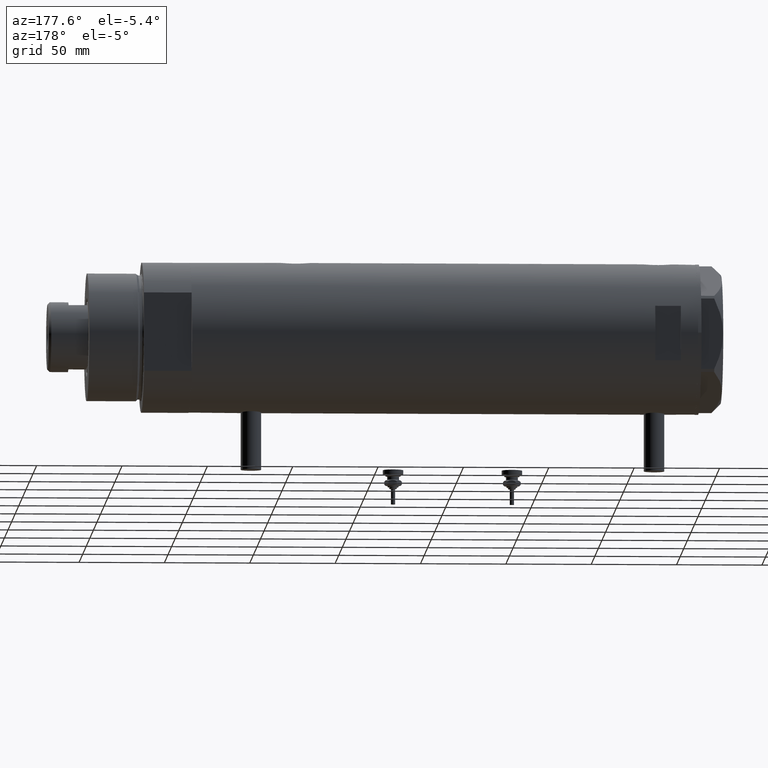
[diagram: clean part render]
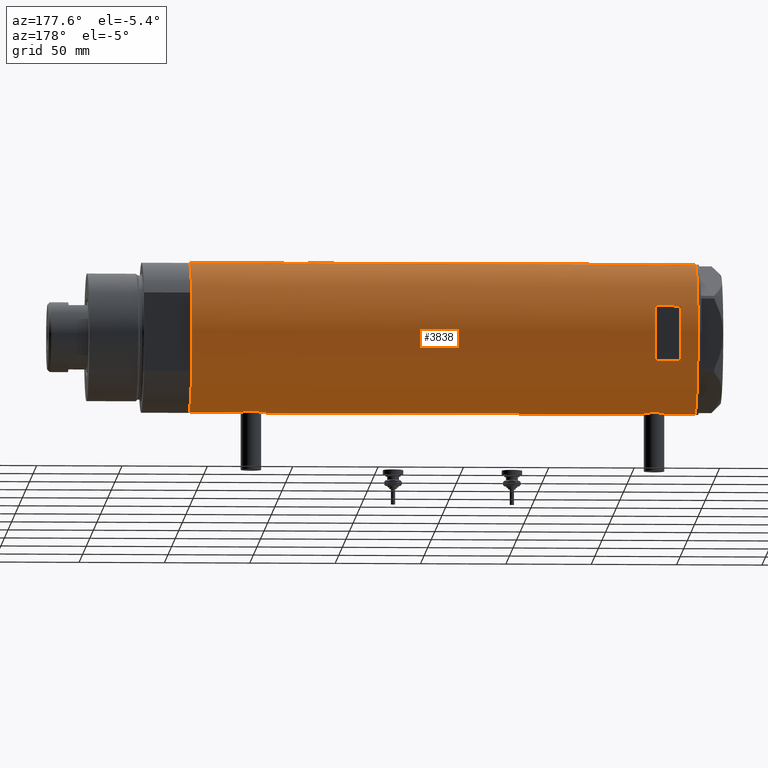
[diagram: same view with one face highlighted and labeled with its STEP entity id]
A machine part, auxiliary view. The second image highlights one B-rep face of the part: STEP entity #3838.
In plain terms, the highlighted cylindrical surface (partial cylindrical patch) has radius 44 mm, axis along (-1, -0, 0).
Its self-contained STEP definition (entity closure, byte-faithful):
#6 = CARTESIAN_POINT ( 'NONE',  ( -43.61859207403892214, 5.782454990768616021, 126.5978640851534180 ) ) ;
#14 = CARTESIAN_POINT ( 'NONE',  ( 0.000000000000000000, 0.000000000000000000, 148.1999999999999886 ) ) ;
#26 = CARTESIAN_POINT ( 'NONE',  ( 43.97062489912107708, 1.639461988184804486, 135.7701462666599070 ) ) ;
#90 = CARTESIAN_POINT ( 'NONE',  ( -44.00000000000000000, 5.388445916248353619E-15, -148.1999999999999886 ) ) ;
#112 = CARTESIAN_POINT ( 'NONE',  ( 43.61291203895921598, 5.829986172017927792, -94.23128710786834006 ) ) ;
#146 = CARTESIAN_POINT ( 'NONE',  ( 43.13962074468734897, 8.660138848900672315, -81.08910258836064600 ) ) ;
#180 = EDGE_CURVE ( 'NONE', #696, #1987, #1617, .T. ) ;
#183 = DIRECTION ( 'NONE',  ( -0.000000000000000000, -0.000000000000000000, -1.000000000000000000 ) ) ;
#187 = ORIENTED_EDGE ( 'NONE', *, *, #1380, .T. ) ;
#241 = CARTESIAN_POINT ( 'NONE',  ( 43.04663170950394857, 9.110642017076081345, -90.23547502190392322 ) ) ;
#249 = FACE_BOUND ( 'NONE', #1991, .T. ) ;
#277 = CARTESIAN_POINT ( 'NONE',  ( 43.80640706382533978, 4.134078575915388853, -76.98867178437912173 ) ) ;
#297 = CARTESIAN_POINT ( 'NONE',  ( 0.000000000000000000, 0.000000000000000000, 138.1999999999999886 ) ) ;
#298 = ORIENTED_EDGE ( 'NONE', *, *, #430, .F. ) ;
#318 = CARTESIAN_POINT ( 'NONE',  ( -43.95446647384543581, 2.010857111636599637, -105.9787577363606346 ) ) ;
#339 = CARTESIAN_POINT ( 'NONE',  ( 43.77712723341632284, 4.432620652875495892, -77.13004990240027325 ) ) ;
#345 = EDGE_CURVE ( 'NONE', #4763, #3845, #4575, .T. ) ;
#383 = EDGE_CURVE ( 'NONE', #2950, #775, #1349, .T. ) ;
#386 = CARTESIAN_POINT ( 'NONE',  ( -43.74805001749254529, 4.711035428619386956, -116.0277606412579985 ) ) ;
#398 = CARTESIAN_POINT ( 'NONE',  ( -43.97754480947187261, 1.419697478855583839, 130.2900327605207451 ) ) ;
#402 = EDGE_LOOP ( 'NONE', ( #3622, #4097, #1155, #5455, #2751, #187, #1235, #5748, #3074, #298, #2373, #955 ) ) ;
#412 = CARTESIAN_POINT ( 'NONE',  ( -43.55386785759471024, 6.249847571481740971, -111.4894505238204374 ) ) ;
#427 = CARTESIAN_POINT ( 'NONE',  ( -44.00000000000000000, 3.205170455528113082E-15, 130.4500000000000171 ) ) ;
#430 = EDGE_CURVE ( 'NONE', #3977, #696, #1002, .T. ) ;
#444 = CARTESIAN_POINT ( 'NONE',  ( -43.61859254253774054, 5.782454868881351295, -109.5021359910553542 ) ) ;
#447 = CARTESIAN_POINT ( 'NONE',  ( 42.92624534982631701, 9.661626915142806027, 123.2999199585529482 ) ) ;
#458 = CARTESIAN_POINT ( 'NONE',  ( -43.91413175532566981, 2.773555030353461515, 129.8158423836674729 ) ) ;
#479 = CARTESIAN_POINT ( 'NONE',  ( 42.96547725528407824, 9.488625330801086832, 129.1245034721107743 ) ) ;
#485 = CARTESIAN_POINT ( 'NONE',  ( -43.59867737633044982, 5.931302618788632408, 122.1875050497011301 ) ) ;
#502 = CARTESIAN_POINT ( 'NONE',  ( 42.84850876528984287, 10.00026482975808406, 126.5505830547042621 ) ) ;
#508 = CARTESIAN_POINT ( 'NONE',  ( -43.88883895882798925, 3.130924084324100409, 118.7868754425185216 ) ) ;
#530 = CARTESIAN_POINT ( 'NONE',  ( 43.99635668041006653, 0.6544833911834624374, 135.8840070847753623 ) ) ;
#609 = CARTESIAN_POINT ( 'NONE',  ( 43.92466059386730137, 2.593004216484783964, -95.76356669671355348 ) ) ;
#615 = DIRECTION ( 'NONE',  ( 1.000000000000000000, 0.000000000000000000, 0.000000000000000000 ) ) ;
#646 = VERTEX_POINT ( 'NONE', #5984 ) ;
#665 = CARTESIAN_POINT ( 'NONE',  ( 43.13897484505559987, 8.663345277311670145, -91.10529600060513644 ) ) ;
#687 = CARTESIAN_POINT ( 'NONE',  ( 43.94229162222109863, 2.275476993733910991, -95.84314464222305219 ) ) ;
#696 = VERTEX_POINT ( 'NONE', #3224 ) ;
#760 = CARTESIAN_POINT ( 'NONE',  ( -43.88968326835893663, 3.132363423941621150, -106.4762076764352088 ) ) ;
#775 = VERTEX_POINT ( 'NONE', #4089 ) ;
#841 = DIRECTION ( 'NONE',  ( 0.000000000000000000, 0.000000000000000000, 1.000000000000000000 ) ) ;
#849 = CARTESIAN_POINT ( 'NONE',  ( -43.71938389712227746, 4.966728892888062852, -108.0838554765912960 ) ) ;
#853 = CARTESIAN_POINT ( 'NONE',  ( 43.46520118248736253, 6.843279251446918288, 118.6010167278784024 ) ) ;
#875 = CARTESIAN_POINT ( 'NONE',  ( 43.50265731352003939, 6.601850423195601003, 118.3818083270105177 ) ) ;
#903 = CARTESIAN_POINT ( 'NONE',  ( 42.86370458161098185, 9.935807968041567406, 124.5909544957013253 ) ) ;
#914 = CARTESIAN_POINT ( 'NONE',  ( -43.67863969133946966, 5.309394106110044476, 127.5037929650255109 ) ) ;
#918 = VECTOR ( 'NONE', #4437, 1000.000000000000000 ) ;
#932 = CARTESIAN_POINT ( 'NONE',  ( 42.99303682946561622, 9.360292926890506848, 122.3657577979279836 ) ) ;
#940 = CARTESIAN_POINT ( 'NONE',  ( -43.87596296923809547, 3.305851531861729420, 118.8919641412373522 ) ) ;
#955 = ORIENTED_EDGE ( 'NONE', *, *, #5128, .F. ) ;
#958 = CARTESIAN_POINT ( 'NONE',  ( 43.04663170950396278, 9.110642017076083121, 121.7645249780961052 ) ) ;
#1002 = LINE ( 'NONE', #1087, #1160 ) ;
#1017 = EDGE_CURVE ( 'NONE', #2709, #4830, #2514, .T. ) ;
#1061 = VERTEX_POINT ( 'NONE', #5917 ) ;
#1087 = CARTESIAN_POINT ( 'NONE',  ( 44.00000000000000000, 0.000000000000000000, -148.1999999999999886 ) ) ;
#1089 = VECTOR ( 'NONE', #2594, 1000.000000000000000 ) ;
#1110 = CARTESIAN_POINT ( 'NONE',  ( 44.00000000000001421, 0.3269372501759423844, 135.9000000000000625 ) ) ;
#1130 = DIRECTION ( 'NONE',  ( 0.000000000000000000, 0.000000000000000000, 1.000000000000000000 ) ) ;
#1155 = ORIENTED_EDGE ( 'NONE', *, *, #2081, .F. ) ;
#1160 = VECTOR ( 'NONE', #2014, 1000.000000000000000 ) ;
#1163 = CARTESIAN_POINT ( 'NONE',  ( 42.90786968859020334, 9.742642423712169375, -88.37802296547127412 ) ) ;
#1188 = ORIENTED_EDGE ( 'NONE', *, *, #345, .F. ) ;
#1232 = CARTESIAN_POINT ( 'NONE',  ( 43.39051256276903246, 7.301963662770312169, -79.25975531787059936 ) ) ;
#1235 = ORIENTED_EDGE ( 'NONE', *, *, #383, .F. ) ;
#1239 = CARTESIAN_POINT ( 'NONE',  ( -43.99999999999997158, 0.4081702738789203533, -118.1499999999999631 ) ) ;
#1276 = CARTESIAN_POINT ( 'NONE',  ( -43.64122538274736485, 5.608286354294323317, 126.9661138696334177 ) ) ;
#1302 = CARTESIAN_POINT ( 'NONE',  ( 43.88561577393363677, 3.228056721358719017, 135.3872166572783158 ) ) ;
#1317 = CARTESIAN_POINT ( 'NONE',  ( 43.68141895191830315, 5.292250119194731539, -77.60895047714808470 ) ) ;
#1321 = EDGE_CURVE ( 'NONE', #1488, #3977, #3317, .T. ) ;
#1336 = CARTESIAN_POINT ( 'NONE',  ( -44.00000000000001421, 0.4135148353567998369, 130.4500000000000171 ) ) ;
#1348 = CARTESIAN_POINT ( 'NONE',  ( -43.91315028150560096, 2.769134003554746482, -117.5068261937540370 ) ) ;
#1349 = CIRCLE ( 'NONE', #4260, 44.00000000000000000 ) ;
#1352 = CARTESIAN_POINT ( 'NONE',  ( 42.86396777580259965, 9.934664719553397916, 127.2157619902652357 ) ) ;
#1364 = CARTESIAN_POINT ( 'NONE',  ( -15.96871942267132027, 40.99999999999999289, -148.1999999999999886 ) ) ;
#1376 = CARTESIAN_POINT ( 'NONE',  ( 43.17277162440354488, 8.493905080221260562, 120.6121296489150723 ) ) ;
#1379 = ORIENTED_EDGE ( 'NONE', *, *, #1017, .F. ) ;
#1380 = EDGE_CURVE ( 'NONE', #1061, #775, #3103, .T. ) ;
#1408 = CARTESIAN_POINT ( 'NONE',  ( 43.71454618729809738, 5.012329428678965471, 134.5593697405831222 ) ) ;
#1413 = LINE ( 'NONE', #90, #1555 ) ;
#1430 = CARTESIAN_POINT ( 'NONE',  ( 15.96871942267132027, 40.99999999999999289, 138.1999999999999886 ) ) ;
#1437 = CARTESIAN_POINT ( 'NONE',  ( 44.00000000000000000, -3.917205576288906830E-21, 135.9000000000000341 ) ) ;
#1456 = VECTOR ( 'NONE', #841, 1000.000000000000000 ) ;
#1488 = VERTEX_POINT ( 'NONE', #2898 ) ;
#1528 = CARTESIAN_POINT ( 'NONE',  ( 43.17306590853065984, 8.492365194390513849, -80.80987467306545113 ) ) ;
#1555 = VECTOR ( 'NONE', #5603, 1000.000000000000000 ) ;
#1562 = CIRCLE ( 'NONE', #5943, 44.00000000000000000 ) ;
#1586 = CARTESIAN_POINT ( 'NONE',  ( 44.00000000000000000, -2.552687571866728611E-15, -96.10000000000000853 ) ) ;
#1617 = B_SPLINE_CURVE_WITH_KNOTS ( 'NONE', 3,
 ( #5543, #4115, #2237, #4082, #4637, #3196, #5514, #5571, #5139, #3147, #5951, #875, #853, #4203, #3617, #1376, #2714, #5480, #958, #932, #4586, #447, #5077, #903, #2267, #502, #1352, #3647, #479, #5986, #1750, #2297, #1805, #2738, #2325, #4142, #2798, #2846, #1831, #3675, #1408, #4169, #3227, #1302, #4560, #26, #4670, #530, #1110, #1437 ),
 .UNSPECIFIED., .F., .F.,
 ( 4, 2, 2, 2, 2, 2, 2, 2, 2, 2, 2, 2, 2, 2, 2, 2, 2, 2, 2, 2, 2, 2, 2, 2, 4 ),
 ( 1.676565531868734773E-18, 0.001960456513248841175, 0.002940684769873264798, 0.003920913026497689288, 0.005881369539746519187, 0.006861597796370934137, 0.007841826052995349086, 0.009802282566244210210, 0.01078251082286863817, 0.01176273907949306613, 0.01274296733611749582, 0.01372319559274192378, 0.01568365210599073981, 0.01764410861923955062, 0.01960456513248837185, 0.02058479338911281889, 0.02156502164573726593, 0.02254524990236171644, 0.02352547815898616002, 0.02548593467223511655, 0.02646616292885961563, 0.02744639118548411472, 0.02940684769873311635, 0.03038707595535761891, 0.03136730421198213187 ),
 .UNSPECIFIED. ) ;
#1676 = CARTESIAN_POINT ( 'NONE',  ( 44.00000000000000000, 0.000000000000000000, 148.1999999999999886 ) ) ;
#1693 = CARTESIAN_POINT ( 'NONE',  ( -43.97068415157983878, 1.617901284326946909, -105.8595487169995266 ) ) ;
#1713 = CARTESIAN_POINT ( 'NONE',  ( 44.00000000000000000, -3.917104602093038540E-21, -76.10000000000000853 ) ) ;
#1718 = CARTESIAN_POINT ( 'NONE',  ( -43.59995593514495482, 5.920088975424566691, -109.8858209130821848 ) ) ;
#1729 = CARTESIAN_POINT ( 'NONE',  ( -43.59995593514495482, 5.920088975424567579, 126.2141790869178379 ) ) ;
#1740 = CARTESIAN_POINT ( 'NONE',  ( 43.88561577393361546, 3.228056721358708803, -76.61278334272179791 ) ) ;
#1750 = CARTESIAN_POINT ( 'NONE',  ( 43.07641822757289418, 8.969229373860580168, 130.3339623579017257 ) ) ;
#1757 = CARTESIAN_POINT ( 'NONE',  ( -43.71938389712227035, 4.966728892888069069, 128.0161445234087125 ) ) ;
#1777 = CARTESIAN_POINT ( 'NONE',  ( -43.94507179847653333, 2.206027755801677870, -106.0486847771820322 ) ) ;
#1788 = CARTESIAN_POINT ( 'NONE',  ( -43.55973179376101001, 6.209370339246233605, 123.3793823294013379 ) ) ;
#1795 = EDGE_CURVE ( 'NONE', #5156, #646, #1413, .T. ) ;
#1802 = CARTESIAN_POINT ( 'NONE',  ( -43.55973179376100290, 6.209370339246232717, -112.7206176705986849 ) ) ;
#1805 = CARTESIAN_POINT ( 'NONE',  ( 43.17306590853067405, 8.492365194390501415, 131.1901253269345773 ) ) ;
#1812 = CARTESIAN_POINT ( 'NONE',  ( -43.57657963456318839, 6.089610171536609329, 125.6217853958080894 ) ) ;
#1831 = CARTESIAN_POINT ( 'NONE',  ( 43.57805684119163914, 6.103282219787171670, 133.8481620164786534 ) ) ;
#1917 = DIRECTION ( 'NONE',  ( -0.000000000000000000, -0.000000000000000000, 1.000000000000000000 ) ) ;
#1945 = CARTESIAN_POINT ( 'NONE',  ( 42.96547725528408535, 9.488625330801085056, -82.87549652788929677 ) ) ;
#1987 = VERTEX_POINT ( 'NONE', #5356 ) ;
#1991 = EDGE_LOOP ( 'NONE', ( #3161, #1379, #2564, #1188 ) ) ;
#2014 = DIRECTION ( 'NONE',  ( 0.000000000000000000, 0.000000000000000000, 1.000000000000000000 ) ) ;
#2081 = EDGE_CURVE ( 'NONE', #2909, #646, #5911, .T. ) ;
#2117 = CARTESIAN_POINT ( 'NONE',  ( 44.00000000000000000, 0.000000000000000000, -148.1999999999999886 ) ) ;
#2128 = B_SPLINE_CURVE_WITH_KNOTS ( 'NONE', 3,
 ( #427, #1336, #4125, #398, #2276, #5522, #3157, #458, #3182, #5062, #2671, #5490, #1757, #914, #4178, #1276, #6, #1729, #3684, #1812, #5040, #2777, #5550, #1788, #4568, #485, #5580, #4542, #3237, #2749, #4620, #2302, #5117, #2336, #940, #508, #2213, #3594, #3564, #2249, #5004, #5463, #3119 ),
 .UNSPECIFIED., .F., .F.,
 ( 4, 2, 2, 2, 2, 2, 2, 2, 1, 2, 2, 2, 2, 2, 2, 2, 2, 2, 2, 2, 2, 4 ),
 ( 3.114226524098576417E-18, 0.001222818171749707637, 0.001834227257624559829, 0.002445636343499412238, 0.003668454515249116622, 0.004891272686998821874, 0.006114090858748525391, 0.006725499944623378884, 0.007336909030498230642, 0.007948318116373082401, 0.008559727202247935027, 0.009782545373997636809, 0.01100536354574729869, 0.01222818171749695884, 0.01283959080337180973, 0.01345099988924666062, 0.01467381806099635894, 0.01589663623274606072, 0.01650804531862090987, 0.01711945440449575903, 0.01834227257624546428, 0.01956509074799516260 ),
 .UNSPECIFIED. ) ;
#2147 = CARTESIAN_POINT ( 'NONE',  ( -43.59867737633045692, 5.931302618788633296, -113.9124949502988926 ) ) ;
#2167 = DIRECTION ( 'NONE',  ( 1.000000000000000000, 0.000000000000000000, 0.000000000000000000 ) ) ;
#2171 = CARTESIAN_POINT ( 'NONE',  ( 43.71454618729809027, 5.012329428678959253, -77.44063025941690626 ) ) ;
#2183 = CARTESIAN_POINT ( 'NONE',  ( -43.62981559643959883, 5.696090409300652802, -114.4805136541452271 ) ) ;
#2194 = LINE ( 'NONE', #3128, #1089 ) ;
#2213 = CARTESIAN_POINT ( 'NONE',  ( -43.91315028150558675, 2.769134003554747370, 118.5931738062459573 ) ) ;
#2234 = CARTESIAN_POINT ( 'NONE',  ( -43.55382423478827292, 6.250151562062086441, -112.3058952948734088 ) ) ;
#2237 = CARTESIAN_POINT ( 'NONE',  ( 43.98503110884230694, 1.314607393679875225, 115.9652901565444694 ) ) ;
#2249 = CARTESIAN_POINT ( 'NONE',  ( -43.97181775256599678, 1.624866278047412349, 118.1510708161490442 ) ) ;
#2264 = CARTESIAN_POINT ( 'NONE',  ( -43.99417607942194763, 0.8200150578638748522, -105.6906332748326207 ) ) ;
#2267 = CARTESIAN_POINT ( 'NONE',  ( 42.84863276153905787, 9.999733523508361088, 125.2413009524922245 ) ) ;
#2276 = CARTESIAN_POINT ( 'NONE',  ( -43.97068415157984589, 1.617901284326944689, 130.2404512830004251 ) ) ;
#2297 = CARTESIAN_POINT ( 'NONE',  ( 43.13962074468733476, 8.660138848900681197, 130.9108974116393540 ) ) ;
#2302 = CARTESIAN_POINT ( 'NONE',  ( -43.74805001749256661, 4.711035428619386956, 120.0722393587420669 ) ) ;
#2325 = CARTESIAN_POINT ( 'NONE',  ( 43.27871541412905287, 7.937063204555979468, 131.9917499724603545 ) ) ;
#2336 = CARTESIAN_POINT ( 'NONE',  ( -43.83576802966639008, 3.813209221108460500, 119.2313450964529125 ) ) ;
#2359 = CARTESIAN_POINT ( 'NONE',  ( 0.000000000000000000, 0.000000000000000000, 123.1999999999999744 ) ) ;
#2373 = ORIENTED_EDGE ( 'NONE', *, *, #1321, .F. ) ;
#2406 = CARTESIAN_POINT ( 'NONE',  ( 42.84850876528984287, 10.00026482975807873, -85.44941694529576637 ) ) ;
#2437 = CARTESIAN_POINT ( 'NONE',  ( 43.04652664061920575, 9.111152824375425396, -81.96541990785412679 ) ) ;
#2472 = CARTESIAN_POINT ( 'NONE',  ( 43.35257020184193522, 7.523219862841656003, -79.50397445915866967 ) ) ;
#2497 = CARTESIAN_POINT ( 'NONE',  ( 43.46520118248735542, 6.843279251446915623, -93.39898327212165441 ) ) ;
#2508 = DIRECTION ( 'NONE',  ( 0.000000000000000000, 0.000000000000000000, 1.000000000000000000 ) ) ;
#2514 = LINE ( 'NONE', #5706, #5641 ) ;
#2531 = CARTESIAN_POINT ( 'NONE',  ( 43.88297407487990398, 3.222431612395379119, -95.57228202029342867 ) ) ;
#2564 = ORIENTED_EDGE ( 'NONE', *, *, #6000, .F. ) ;
#2586 = CARTESIAN_POINT ( 'NONE',  ( -44.00000000000000000, 5.388445916248353619E-15, -148.1999999999999886 ) ) ;
#2594 = DIRECTION ( 'NONE',  ( 0.000000000000000000, 0.000000000000000000, 1.000000000000000000 ) ) ;
#2671 = CARTESIAN_POINT ( 'NONE',  ( -43.80646232387288563, 4.132500855894035929, 128.9064558540335668 ) ) ;
#2679 = CARTESIAN_POINT ( 'NONE',  ( 43.57805684119164624, 6.103282219787162788, -78.15183798352141764 ) ) ;
#2685 = CARTESIAN_POINT ( 'NONE',  ( -43.66555354895124452, 5.415612800338318600, -108.7734364282244712 ) ) ;
#2709 = VERTEX_POINT ( 'NONE', #1430 ) ;
#2710 = CARTESIAN_POINT ( 'NONE',  ( -43.97754480947185129, 1.419697478855583617, -105.8099672394792066 ) ) ;
#2714 = CARTESIAN_POINT ( 'NONE',  ( 43.13897484505559277, 8.663345277311664816, 120.8947039993948920 ) ) ;
#2738 = CARTESIAN_POINT ( 'NONE',  ( 43.24261242176996234, 8.130827601038818742, 131.7305518685417383 ) ) ;
#2749 = CARTESIAN_POINT ( 'NONE',  ( -43.67867890111968165, 5.309046579850784653, 120.8957722092397660 ) ) ;
#2751 = ORIENTED_EDGE ( 'NONE', *, *, #4621, .F. ) ;
#2777 = CARTESIAN_POINT ( 'NONE',  ( -43.55386785759471735, 6.249847571481741859, 124.6105494761795569 ) ) ;
#2798 = CARTESIAN_POINT ( 'NONE',  ( 43.39051256276903956, 7.301963662770305064, 132.7402446821294575 ) ) ;
#2821 = VECTOR ( 'NONE', #1130, 1000.000000000000000 ) ;
#2846 = CARTESIAN_POINT ( 'NONE',  ( 43.50382207688847558, 6.605942769308297713, 133.4360468883822932 ) ) ;
#2898 = CARTESIAN_POINT ( 'NONE',  ( 44.00000000000000000, -2.552687571866728611E-15, -96.10000000000000853 ) ) ;
#2909 = VERTEX_POINT ( 'NONE', #4067 ) ;
#2910 = CARTESIAN_POINT ( 'NONE',  ( 43.27822890220284791, 7.945655169171514487, -92.20725383289293120 ) ) ;
#2915 = CYLINDRICAL_SURFACE ( 'NONE', #3023, 44.00000000000000000 ) ;
#2922 = EDGE_CURVE ( 'NONE', #1987, #2950, #2194, .T. ) ;
#2933 = EDGE_CURVE ( 'NONE', #4991, #5156, #1562, .T. ) ;
#2942 = CARTESIAN_POINT ( 'NONE',  ( 43.77939001959703802, 4.442287752090381403, -95.08306177559161654 ) ) ;
#2950 = VERTEX_POINT ( 'NONE', #1676 ) ;
#3023 = AXIS2_PLACEMENT_3D ( 'NONE', #4764, #2508, #615 ) ;
#3074 = ORIENTED_EDGE ( 'NONE', *, *, #180, .F. ) ;
#3087 = EDGE_CURVE ( 'NONE', #4830, #4763, #5846, .T. ) ;
#3103 = LINE ( 'NONE', #4987, #1456 ) ;
#3108 = CARTESIAN_POINT ( 'NONE',  ( -43.91413175532567692, 2.773555030353453965, -106.2841576163325925 ) ) ;
#3119 = CARTESIAN_POINT ( 'NONE',  ( -44.00000000000000000, 5.388445781982983516E-15, 117.9500000000000028 ) ) ;
#3128 = CARTESIAN_POINT ( 'NONE',  ( 44.00000000000000000, 0.000000000000000000, -148.1999999999999886 ) ) ;
#3147 = CARTESIAN_POINT ( 'NONE',  ( 43.61291203895921598, 5.829986172017925128, 117.7687128921317452 ) ) ;
#3157 = CARTESIAN_POINT ( 'NONE',  ( -43.94507179847653333, 2.206027755801685863, 130.0513152228180047 ) ) ;
#3161 = ORIENTED_EDGE ( 'NONE', *, *, #3087, .F. ) ;
#3172 = CARTESIAN_POINT ( 'NONE',  ( -43.58221825186232223, 6.049526113783018744, -113.5226297081795650 ) ) ;
#3182 = CARTESIAN_POINT ( 'NONE',  ( -43.88968326835894374, 3.132363423941633140, 129.6237923235648282 ) ) ;
#3193 = CARTESIAN_POINT ( 'NONE',  ( -43.80646232387288563, 4.132500855894024383, -107.1935441459664275 ) ) ;
#3196 = CARTESIAN_POINT ( 'NONE',  ( 43.88297407487989688, 3.222431612395376455, 116.4277179797065997 ) ) ;
#3212 = DIRECTION ( 'NONE',  ( 0.000000000000000000, 0.000000000000000000, 1.000000000000000000 ) ) ;
#3224 = CARTESIAN_POINT ( 'NONE',  ( 44.00000000000000000, -1.726036355082439716E-15, 115.9000000000000199 ) ) ;
#3227 = CARTESIAN_POINT ( 'NONE',  ( 43.80640706382533267, 4.134078575915394183, 135.0113282156208641 ) ) ;
#3237 = CARTESIAN_POINT ( 'NONE',  ( -43.66575107734167460, 5.414026674167574882, 121.0706491196229848 ) ) ;
#3299 = EDGE_CURVE ( 'NONE', #2909, #5459, #5751, .T. ) ;
#3317 = B_SPLINE_CURVE_WITH_KNOTS ( 'NONE', 3,
 ( #1586, #4855, #3874, #687, #609, #2531, #3785, #2942, #5219, #112, #4385, #3841, #2497, #5721, #2910, #4822, #665, #4758, #241, #3462, #5757, #5347, #1163, #3815, #5673, #2406, #3347, #4257, #1945, #2437, #5696, #146, #1528, #3370, #4788, #2472, #1232, #4893, #2679, #1317, #2171, #339, #277, #1740, #3576, #5473, #5411, #3939, #4424, #1713 ),
 .UNSPECIFIED., .F., .F.,
 ( 4, 2, 2, 2, 2, 2, 2, 2, 2, 2, 2, 2, 2, 2, 2, 2, 2, 2, 2, 2, 2, 2, 2, 2, 4 ),
 ( 2.479523669370822448E-18, 0.001960456513248891482, 0.002940684769873340258, 0.003920913026497789035, 0.005881369539746669241, 0.006861597796371108476, 0.007841826052995546845, 0.009802282566244456541, 0.01078251082286890879, 0.01176273907949335930, 0.01274296733611781154, 0.01372319559274226206, 0.01568365210599112838, 0.01764410861923999124, 0.01960456513248885757, 0.02058479338911329073, 0.02156502164573771696, 0.02254524990236214665, 0.02352547815898657982, 0.02548593467223546696, 0.02646616292885991054, 0.02744639118548435758, 0.02940684769873324472, 0.03038707595535769176, 0.03136730421198213881 ),
 .UNSPECIFIED. ) ;
#3347 = CARTESIAN_POINT ( 'NONE',  ( 42.86396777580259254, 9.934664719553399692, -84.78423800973480695 ) ) ;
#3370 = CARTESIAN_POINT ( 'NONE',  ( 43.24261242176995523, 8.130827601038827623, -80.26944813145831858 ) ) ;
#3410 = FACE_OUTER_BOUND ( 'NONE', #402, .T. ) ;
#3462 = CARTESIAN_POINT ( 'NONE',  ( 42.99303682946561622, 9.360292926890510401, -89.63424220207205906 ) ) ;
#3512 = DIRECTION ( 'NONE',  ( -0.000000000000000000, -0.000000000000000000, -1.000000000000000000 ) ) ;
#3531 = CARTESIAN_POINT ( 'NONE',  ( -43.92459115390705193, 2.581892149020998950, -117.5954582707334595 ) ) ;
#3555 = CARTESIAN_POINT ( 'NONE',  ( -43.95549163632549750, 2.014511215452027937, -117.8305895570497768 ) ) ;
#3564 = CARTESIAN_POINT ( 'NONE',  ( -43.95549163632550460, 2.014511215452026160, 118.2694104429502460 ) ) ;
#3576 = CARTESIAN_POINT ( 'NONE',  ( 43.92756755766650656, 2.604528169608118393, -76.42286588097658750 ) ) ;
#3589 = AXIS2_PLACEMENT_3D ( 'NONE', #2359, #1917, #5249 ) ;
#3594 = CARTESIAN_POINT ( 'NONE',  ( -43.92459115390705904, 2.581892149020998506, 118.5045417292665491 ) ) ;
#3615 = CARTESIAN_POINT ( 'NONE',  ( -43.80687348212602217, 4.128385987736833407, -116.6104874331096255 ) ) ;
#3617 = CARTESIAN_POINT ( 'NONE',  ( 43.27822890220284791, 7.945655169171514487, 119.7927461671070830 ) ) ;
#3622 = ORIENTED_EDGE ( 'NONE', *, *, #2933, .T. ) ;
#3644 = CARTESIAN_POINT ( 'NONE',  ( -43.64133398152736021, 5.607447751852152606, -114.6678604501243512 ) ) ;
#3647 = CARTESIAN_POINT ( 'NONE',  ( 42.92259096922159500, 9.678247830257124207, 128.5000599302879323 ) ) ;
#3675 = CARTESIAN_POINT ( 'NONE',  ( 43.68141895191831736, 5.292250119194742197, 134.3910495228520006 ) ) ;
#3684 = CARTESIAN_POINT ( 'NONE',  ( -43.58362292239463187, 6.039157555656599285, 125.8226357844804681 ) ) ;
#3785 = CARTESIAN_POINT ( 'NONE',  ( 43.85884410404901956, 3.534688330930385369, -95.46019808750335756 ) ) ;
#3815 = CARTESIAN_POINT ( 'NONE',  ( 42.86370458161097474, 9.935807968041563853, -87.40904550429864628 ) ) ;
#3838 = ADVANCED_FACE ( 'NONE', ( #249, #3410 ), #2915, .T. ) ;
#3841 = CARTESIAN_POINT ( 'NONE',  ( 43.50265731352003939, 6.601850423195591233, -93.61819167298956756 ) ) ;
#3845 = VERTEX_POINT ( 'NONE', #5288 ) ;
#3874 = CARTESIAN_POINT ( 'NONE',  ( 43.98503110884232115, 1.314607393679875669, -96.03470984345551642 ) ) ;
#3916 = CARTESIAN_POINT ( 'NONE',  ( -15.96871942267132027, 40.99999999999999289, 123.1999999999999886 ) ) ;
#3935 = CARTESIAN_POINT ( 'NONE',  ( 0.000000000000000000, 0.000000000000000000, -148.1999999999999886 ) ) ;
#3939 = CARTESIAN_POINT ( 'NONE',  ( 43.99635668041006653, 0.6544833911834552209, -76.11599291522472299 ) ) ;
#3977 = VERTEX_POINT ( 'NONE', #4077 ) ;
#3982 = CARTESIAN_POINT ( 'NONE',  ( -43.88883895882799635, 3.130924084324101297, -117.3131245574814727 ) ) ;
#4013 = CARTESIAN_POINT ( 'NONE',  ( -43.97181775256600389, 1.624866278047415680, -117.9489291838509502 ) ) ;
#4067 = CARTESIAN_POINT ( 'NONE',  ( -44.00000000000000000, 4.742435893011557518E-16, -105.6499999999999915 ) ) ;
#4077 = CARTESIAN_POINT ( 'NONE',  ( 44.00000000000000000, -3.917104602093038540E-21, -76.10000000000000853 ) ) ;
#4079 = CARTESIAN_POINT ( 'NONE',  ( -43.64122538274737195, 5.608286354294323317, -109.1338861303666192 ) ) ;
#4082 = CARTESIAN_POINT ( 'NONE',  ( 43.94229162222109863, 2.275476993733910547, 116.1568553577769620 ) ) ;
#4089 = CARTESIAN_POINT ( 'NONE',  ( -44.00000000000000000, 5.388445916248353619E-15, 148.1999999999999886 ) ) ;
#4097 = ORIENTED_EDGE ( 'NONE', *, *, #1795, .T. ) ;
#4113 = CARTESIAN_POINT ( 'NONE',  ( -43.57657963456318839, 6.089610171536606664, -110.4782146041918622 ) ) ;
#4115 = CARTESIAN_POINT ( 'NONE',  ( 44.00000000000001421, 0.6630566900259826646, 115.9000000000000483 ) ) ;
#4125 = CARTESIAN_POINT ( 'NONE',  ( -43.99417607942194763, 0.8200150578638757404, 130.4093667251674162 ) ) ;
#4142 = CARTESIAN_POINT ( 'NONE',  ( 43.35257020184193522, 7.523219862841646233, 132.4960255408413730 ) ) ;
#4169 = CARTESIAN_POINT ( 'NONE',  ( 43.77712723341632994, 4.432620652875505662, 134.8699500975996557 ) ) ;
#4178 = CARTESIAN_POINT ( 'NONE',  ( -43.66555354895123742, 5.415612800338316823, 127.3265635717755515 ) ) ;
#4203 = CARTESIAN_POINT ( 'NONE',  ( 43.35294442506074120, 7.532526048221051873, 119.2906458550888829 ) ) ;
#4257 = CARTESIAN_POINT ( 'NONE',  ( 42.92259096922160921, 9.678247830257127760, -83.49994006971209615 ) ) ;
#4260 = AXIS2_PLACEMENT_3D ( 'NONE', #14, #5906, #5213 ) ;
#4385 = CARTESIAN_POINT ( 'NONE',  ( 43.57657781376908446, 6.094873943596679666, -94.03474301119597101 ) ) ;
#4424 = CARTESIAN_POINT ( 'NONE',  ( 44.00000000000002132, 0.3269372501759363336, -76.10000000000002274 ) ) ;
#4437 = DIRECTION ( 'NONE',  ( 0.000000000000000000, 0.000000000000000000, 1.000000000000000000 ) ) ;
#4461 = CARTESIAN_POINT ( 'NONE',  ( -43.67867890111967455, 5.309046579850785541, -115.2042277907602141 ) ) ;
#4498 = CARTESIAN_POINT ( 'NONE',  ( -43.67863969133946966, 5.309394106110037370, -108.5962070349745403 ) ) ;
#4534 = LINE ( 'NONE', #2117, #918 ) ;
#4542 = CARTESIAN_POINT ( 'NONE',  ( -43.64133398152736021, 5.607447751852150830, 121.4321395498756573 ) ) ;
#4557 = CARTESIAN_POINT ( 'NONE',  ( -43.99413512814552263, 0.8228129877960659311, -118.1090831432582604 ) ) ;
#4560 = CARTESIAN_POINT ( 'NONE',  ( 43.92756755766648524, 2.604528169608123722, 135.5771341190234409 ) ) ;
#4568 = CARTESIAN_POINT ( 'NONE',  ( -43.58221825186232223, 6.049526113783017855, 122.5773702918204293 ) ) ;
#4575 = LINE ( 'NONE', #1364, #5638 ) ;
#4582 = CARTESIAN_POINT ( 'NONE',  ( -43.83593455218809254, 3.811409182021277431, -106.9298507229649857 ) ) ;
#4586 = CARTESIAN_POINT ( 'NONE',  ( 42.96879251999278893, 9.470609476412109373, 122.6727710005894352 ) ) ;
#4600 = AXIS2_PLACEMENT_3D ( 'NONE', #297, #3512, #4946 ) ;
#4620 = CARTESIAN_POINT ( 'NONE',  ( -43.71901936021024682, 4.969830049220625767, 120.3883236230112743 ) ) ;
#4621 = EDGE_CURVE ( 'NONE', #1061, #5459, #2128, .T. ) ;
#4637 = CARTESIAN_POINT ( 'NONE',  ( 43.92466059386730848, 2.593004216484782631, 116.2364333032864891 ) ) ;
#4670 = CARTESIAN_POINT ( 'NONE',  ( 43.98169492814102455, 1.310824514239774530, 135.8191978038068441 ) ) ;
#4758 = CARTESIAN_POINT ( 'NONE',  ( 43.07598348983507464, 8.971306953823010133, -90.52969423187184361 ) ) ;
#4763 = VERTEX_POINT ( 'NONE', #3916 ) ;
#4764 = CARTESIAN_POINT ( 'NONE',  ( 0.000000000000000000, 0.000000000000000000, -148.1999999999999886 ) ) ;
#4786 = CARTESIAN_POINT ( 'NONE',  ( -44.00000000000000000, 5.388445916248353619E-15, -148.1999999999999886 ) ) ;
#4788 = CARTESIAN_POINT ( 'NONE',  ( 43.27871541412905287, 7.937063204555986573, -80.00825002753971660 ) ) ;
#4822 = CARTESIAN_POINT ( 'NONE',  ( 43.17277162440355198, 8.493905080221260562, -91.38787035108497037 ) ) ;
#4830 = VERTEX_POINT ( 'NONE', #5076 ) ;
#4855 = CARTESIAN_POINT ( 'NONE',  ( 44.00000000000001421, 0.6630566900259825536, -96.09999999999998010 ) ) ;
#4893 = CARTESIAN_POINT ( 'NONE',  ( 43.50382207688845426, 6.605942769308308371, -78.56395311161780626 ) ) ;
#4946 = DIRECTION ( 'NONE',  ( 1.000000000000000000, -8.881784197001252323E-16, 0.000000000000000000 ) ) ;
#4987 = CARTESIAN_POINT ( 'NONE',  ( -44.00000000000000000, 5.388445916248353619E-15, -148.1999999999999886 ) ) ;
#4991 = VERTEX_POINT ( 'NONE', #5960 ) ;
#4992 = CARTESIAN_POINT ( 'NONE',  ( -43.83576802966640429, 3.813209221108459168, -116.8686549035471103 ) ) ;
#5004 = CARTESIAN_POINT ( 'NONE',  ( -43.99413512814552973, 0.8228129877960675964, 117.9909168567418050 ) ) ;
#5012 = DIRECTION ( 'NONE',  ( 0.000000000000000000, 0.000000000000000000, 1.000000000000000000 ) ) ;
#5040 = CARTESIAN_POINT ( 'NONE',  ( -43.55963022497230952, 6.210088036293396563, 125.0164616301742484 ) ) ;
#5052 = CARTESIAN_POINT ( 'NONE',  ( -43.74833112883977293, 4.708208586952001617, -107.7694961649112457 ) ) ;
#5062 = CARTESIAN_POINT ( 'NONE',  ( -43.83593455218809964, 3.811409182021288533, 129.1701492770350228 ) ) ;
#5076 = CARTESIAN_POINT ( 'NONE',  ( 15.96871942267132027, 40.99999999999999289, 123.1999999999999886 ) ) ;
#5077 = CARTESIAN_POINT ( 'NONE',  ( 42.90786968859020334, 9.742642423712167599, 123.6219770345287543 ) ) ;
#5095 = CIRCLE ( 'NONE', #4600, 44.00000000000000000 ) ;
#5117 = CARTESIAN_POINT ( 'NONE',  ( -43.80687348212601506, 4.128385987736831630, 119.4895125668903830 ) ) ;
#5128 = EDGE_CURVE ( 'NONE', #4991, #1488, #4534, .T. ) ;
#5139 = CARTESIAN_POINT ( 'NONE',  ( 43.71659050864932539, 5.015880325000607876, 117.2243317403618477 ) ) ;
#5156 = VERTEX_POINT ( 'NONE', #2586 ) ;
#5213 = DIRECTION ( 'NONE',  ( 1.000000000000000000, 0.000000000000000000, 0.000000000000000000 ) ) ;
#5219 = CARTESIAN_POINT ( 'NONE',  ( 43.71659050864931828, 5.015880325000607876, -94.77566825963822339 ) ) ;
#5249 = DIRECTION ( 'NONE',  ( -1.000000000000000000, -8.881784197001252323E-16, 0.000000000000000000 ) ) ;
#5288 = CARTESIAN_POINT ( 'NONE',  ( -15.96871942267132027, 40.99999999999999289, 138.1999999999999886 ) ) ;
#5347 = CARTESIAN_POINT ( 'NONE',  ( 42.92624534982630280, 9.661626915142804251, -88.70008004144708025 ) ) ;
#5356 = CARTESIAN_POINT ( 'NONE',  ( 44.00000000000000000, -3.917205576288906830E-21, 135.9000000000000341 ) ) ;
#5410 = CARTESIAN_POINT ( 'NONE',  ( -44.00000000000000000, 5.388445781982983516E-15, 117.9500000000000028 ) ) ;
#5411 = CARTESIAN_POINT ( 'NONE',  ( 43.98169492814104586, 1.310824514239765426, -76.18080219619319848 ) ) ;
#5423 = CARTESIAN_POINT ( 'NONE',  ( -43.58362292239462477, 6.039157555656595733, -110.2773642155195688 ) ) ;
#5455 = ORIENTED_EDGE ( 'NONE', *, *, #3299, .T. ) ;
#5459 = VERTEX_POINT ( 'NONE', #5410 ) ;
#5463 = CARTESIAN_POINT ( 'NONE',  ( -44.00000000000000711, 0.4081702738789175222, 117.9500000000000313 ) ) ;
#5473 = CARTESIAN_POINT ( 'NONE',  ( 43.97062489912107708, 1.639461988184795826, -76.22985373334013559 ) ) ;
#5480 = CARTESIAN_POINT ( 'NONE',  ( 43.07598348983508174, 8.971306953823004804, 121.4703057681281138 ) ) ;
#5490 = CARTESIAN_POINT ( 'NONE',  ( -43.74833112883975872, 4.708208586952010499, 128.3305038350887060 ) ) ;
#5511 = CARTESIAN_POINT ( 'NONE',  ( -44.00000000000000000, 4.742435893011557518E-16, -105.6499999999999915 ) ) ;
#5514 = CARTESIAN_POINT ( 'NONE',  ( 43.85884410404901246, 3.534688330930383593, 116.5398019124966424 ) ) ;
#5522 = CARTESIAN_POINT ( 'NONE',  ( -43.95446647384545003, 2.010857111636596084, 130.1212422636393455 ) ) ;
#5541 = CARTESIAN_POINT ( 'NONE',  ( -43.87596296923810968, 3.305851531861728976, -117.2080358587625994 ) ) ;
#5543 = CARTESIAN_POINT ( 'NONE',  ( 44.00000000000000000, -1.726036355082439716E-15, 115.9000000000000199 ) ) ;
#5550 = CARTESIAN_POINT ( 'NONE',  ( -43.55382423478828713, 6.250151562062088217, 123.7941047051266281 ) ) ;
#5571 = CARTESIAN_POINT ( 'NONE',  ( 43.77939001959704513, 4.442287752090381403, 116.9169382244084119 ) ) ;
#5580 = CARTESIAN_POINT ( 'NONE',  ( -43.62981559643957752, 5.696090409300651025, 121.6194863458547673 ) ) ;
#5603 = DIRECTION ( 'NONE',  ( 0.000000000000000000, 0.000000000000000000, 1.000000000000000000 ) ) ;
#5638 = VECTOR ( 'NONE', #3212, 1000.000000000000000 ) ;
#5641 = VECTOR ( 'NONE', #183, 1000.000000000000000 ) ;
#5673 = CARTESIAN_POINT ( 'NONE',  ( 42.84863276153905076, 9.999733523508359312, -86.75869904750777550 ) ) ;
#5696 = CARTESIAN_POINT ( 'NONE',  ( 43.07641822757289418, 8.969229373860567733, -81.66603764209828853 ) ) ;
#5706 = CARTESIAN_POINT ( 'NONE',  ( 15.96871942267132027, 40.99999999999999289, -148.1999999999999886 ) ) ;
#5721 = CARTESIAN_POINT ( 'NONE',  ( 43.35294442506072699, 7.532526048221049209, -92.70935414491108872 ) ) ;
#5748 = ORIENTED_EDGE ( 'NONE', *, *, #2922, .F. ) ;
#5751 = LINE ( 'NONE', #4786, #2821 ) ;
#5757 = CARTESIAN_POINT ( 'NONE',  ( 42.96879251999280314, 9.470609476412112926, -89.32722899941057904 ) ) ;
#5846 = CIRCLE ( 'NONE', #3589, 44.00000000000000000 ) ;
#5862 = CARTESIAN_POINT ( 'NONE',  ( -44.00000000000000000, 5.388445781982983516E-15, -118.1500000000000057 ) ) ;
#5889 = CARTESIAN_POINT ( 'NONE',  ( -44.00000000000000711, 0.4135148353567996149, -105.6499999999999773 ) ) ;
#5906 = DIRECTION ( 'NONE',  ( 0.000000000000000000, 0.000000000000000000, 1.000000000000000000 ) ) ;
#5911 = B_SPLINE_CURVE_WITH_KNOTS ( 'NONE', 3,
 ( #5511, #5889, #2264, #2710, #1693, #318, #1777, #3108, #760, #4582, #3193, #5052, #849, #4498, #2685, #4079, #444, #1718, #5423, #4113, #5983, #412, #2234, #1802, #3172, #2147, #2183, #3644, #5914, #4461, #5948, #386, #3615, #4992, #5541, #3982, #1348, #3531, #3555, #4013, #4557, #1239, #5862 ),
 .UNSPECIFIED., .F., .F.,
 ( 4, 2, 2, 2, 2, 2, 2, 2, 1, 2, 2, 2, 2, 2, 2, 2, 2, 2, 2, 2, 2, 4 ),
 ( 4.607873388256435088E-19, 0.001222818171749670340, 0.001834227257624505619, 0.002445636343499341114, 0.003668454515249027284, 0.004891272686998713454, 0.006114090858748398756, 0.006725499944623259188, 0.007336909030498119620, 0.007948318116372978318, 0.008559727202247837882, 0.009782545373997518848, 0.01100536354574719981, 0.01222818171749687904, 0.01283959080337173861, 0.01345099988924659644, 0.01467381806099631383, 0.01589663623274603296, 0.01650804531862088906, 0.01711945440449574862, 0.01834227257624546428, 0.01956509074799517994 ),
 .UNSPECIFIED. ) ;
#5914 = CARTESIAN_POINT ( 'NONE',  ( -43.66575107734168171, 5.414026674167576658, -115.0293508803769811 ) ) ;
#5917 = CARTESIAN_POINT ( 'NONE',  ( -44.00000000000000000, 3.205170455528113082E-15, 130.4500000000000171 ) ) ;
#5943 = AXIS2_PLACEMENT_3D ( 'NONE', #3935, #5012, #2167 ) ;
#5948 = CARTESIAN_POINT ( 'NONE',  ( -43.71901936021023971, 4.969830049220626655, -115.7116763769886916 ) ) ;
#5951 = CARTESIAN_POINT ( 'NONE',  ( 43.57657781376909156, 6.094873943596689436, 117.9652569888040858 ) ) ;
#5960 = CARTESIAN_POINT ( 'NONE',  ( 44.00000000000000000, 0.000000000000000000, -148.1999999999999886 ) ) ;
#5983 = CARTESIAN_POINT ( 'NONE',  ( -43.55963022497231663, 6.210088036293396563, -111.0835383698257601 ) ) ;
#5984 = CARTESIAN_POINT ( 'NONE',  ( -44.00000000000000000, 5.388445781982983516E-15, -118.1500000000000057 ) ) ;
#5986 = CARTESIAN_POINT ( 'NONE',  ( 43.04652664061920575, 9.111152824375430725, 130.0345800921458874 ) ) ;
#6000 = EDGE_CURVE ( 'NONE', #3845, #2709, #5095, .T. ) ;